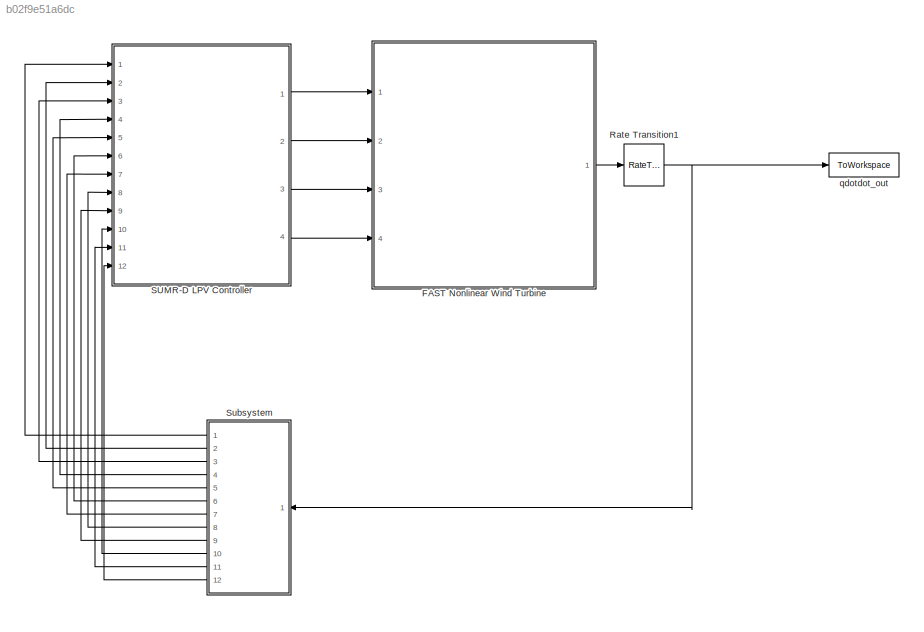
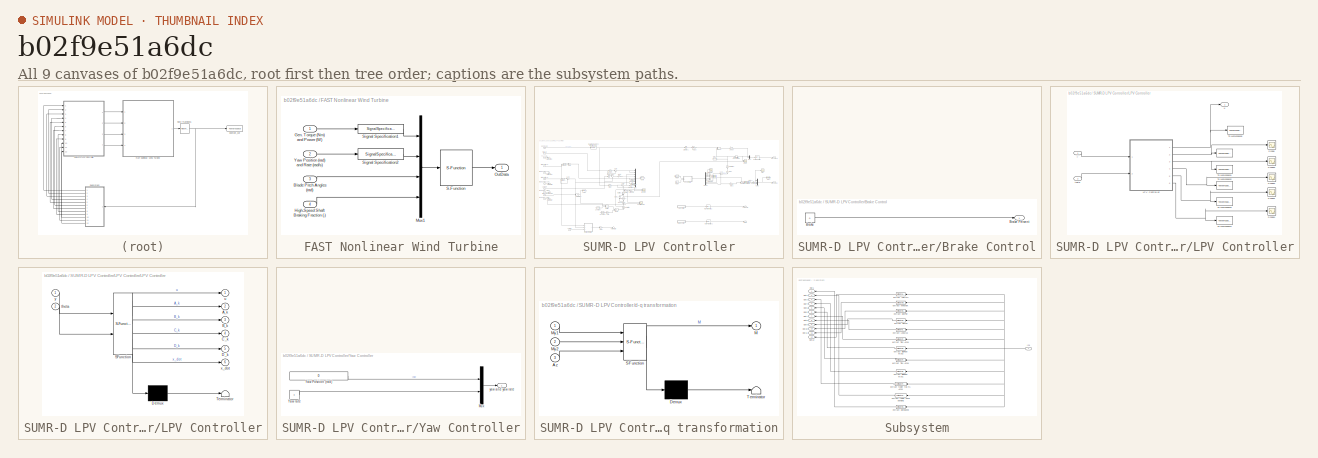
[diagram: thumbnail index - all 9 canvases of the model, root first then tree order]
MODEL slx_b02f9e51a6dc
KIND model
CONFIG AbsTol = auto
CONFIG EnableMultiTasking = on
CONFIG FixedStep = .0125
CONFIG MaxStep = auto
CONFIG MinStep = auto
CONFIG RelTol = 1e-3
CONFIG SampleTimeConstraint = Unconstrained
CONFIG Solver = ode4
CONFIG SolverName = ode4
CONFIG StartTime = 0.0
CONFIG StopTime = TMax
BLOCK [SubSystem] FAST Nonlinear Wind Turbine
  Ports = [4, 1]
  RequestExecContextInheritance = off
BLOCK [Inport] FAST Nonlinear Wind Turbine/Blade Pitch Angles (rad)
  IconDisplay = Port number
  Port = 3
BLOCK [Inport] FAST Nonlinear Wind Turbine/Gen. Torque (Nm) and Power (W)
  IconDisplay = Port number
BLOCK [Inport] FAST Nonlinear Wind Turbine/High-Speed Shaft Braking Fraction (-)
  IconDisplay = Port number
  Port = 4
BLOCK [Mux] FAST Nonlinear Wind Turbine/Mux1
  DisplayOption = bar
  Ports = [4, 1]
BLOCK [Outport] FAST Nonlinear Wind Turbine/OutData
  IconDisplay = Port number
BLOCK [S-Function] FAST Nonlinear Wind Turbine/S-Function
  EnableBusSupport = off
  FunctionName = FAST_SFunc
  Parameters = FAST_InputFileName, TMax, 0
  Ports = [1, 1]
  SFcnIsStateOwnerBlock = off
  SFunctionDeploymentMode = off
BLOCK [SignalSpecification] FAST Nonlinear Wind Turbine/Signal Specification1
  Dimensions = 2
  OutDataTypeStr = double
  SignalType = real
BLOCK [SignalSpecification] FAST Nonlinear Wind Turbine/Signal Specification2
  Dimensions = 2
  OutDataTypeStr = double
  SignalType = real
BLOCK [Inport] FAST Nonlinear Wind Turbine/Yaw Position (rad) and Rate (rad//s)
  IconDisplay = Port number
  Port = 2
BLOCK [RateTransition] Rate Transition1
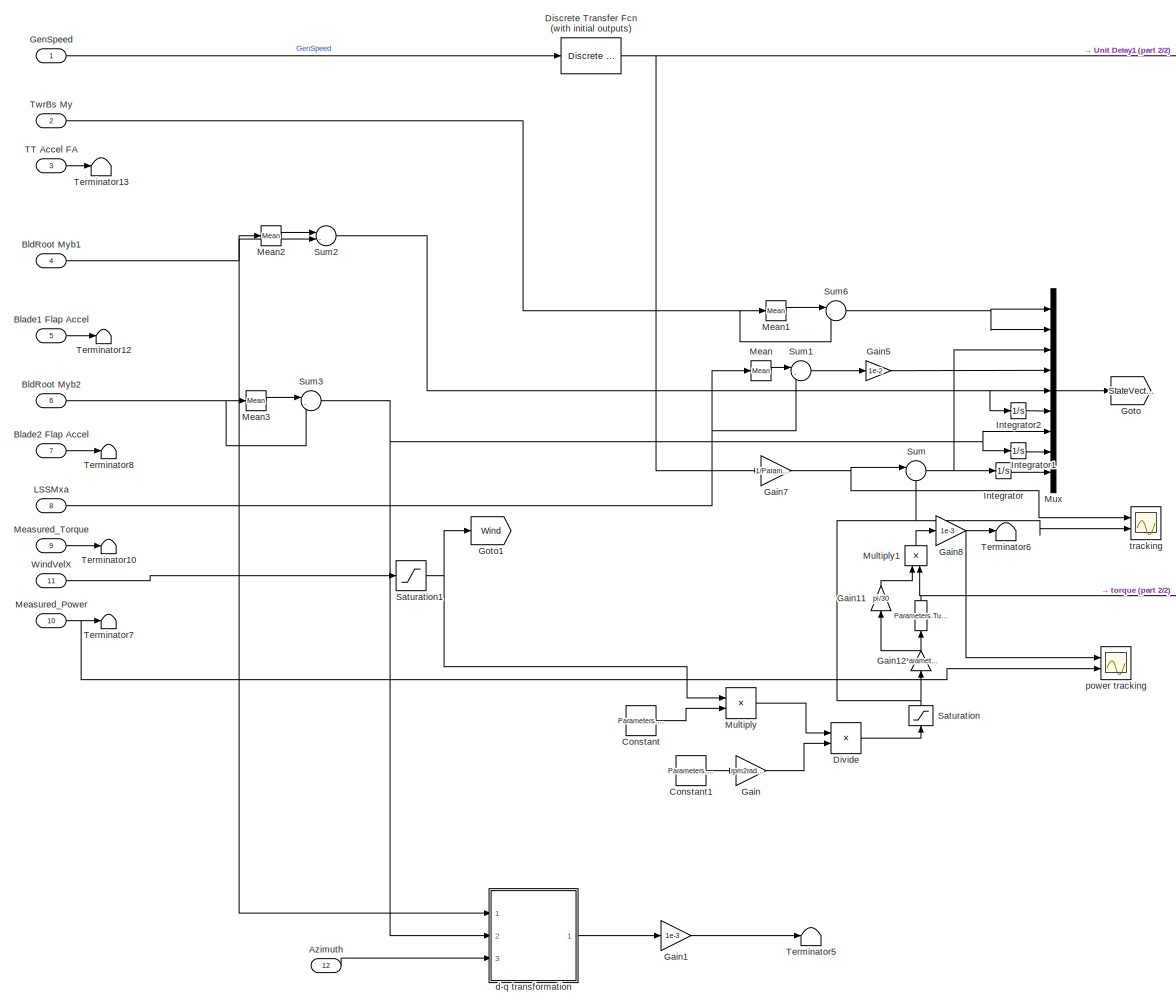
[diagram: SUMR-D LPV Controller - part 1/2, left side, full height]
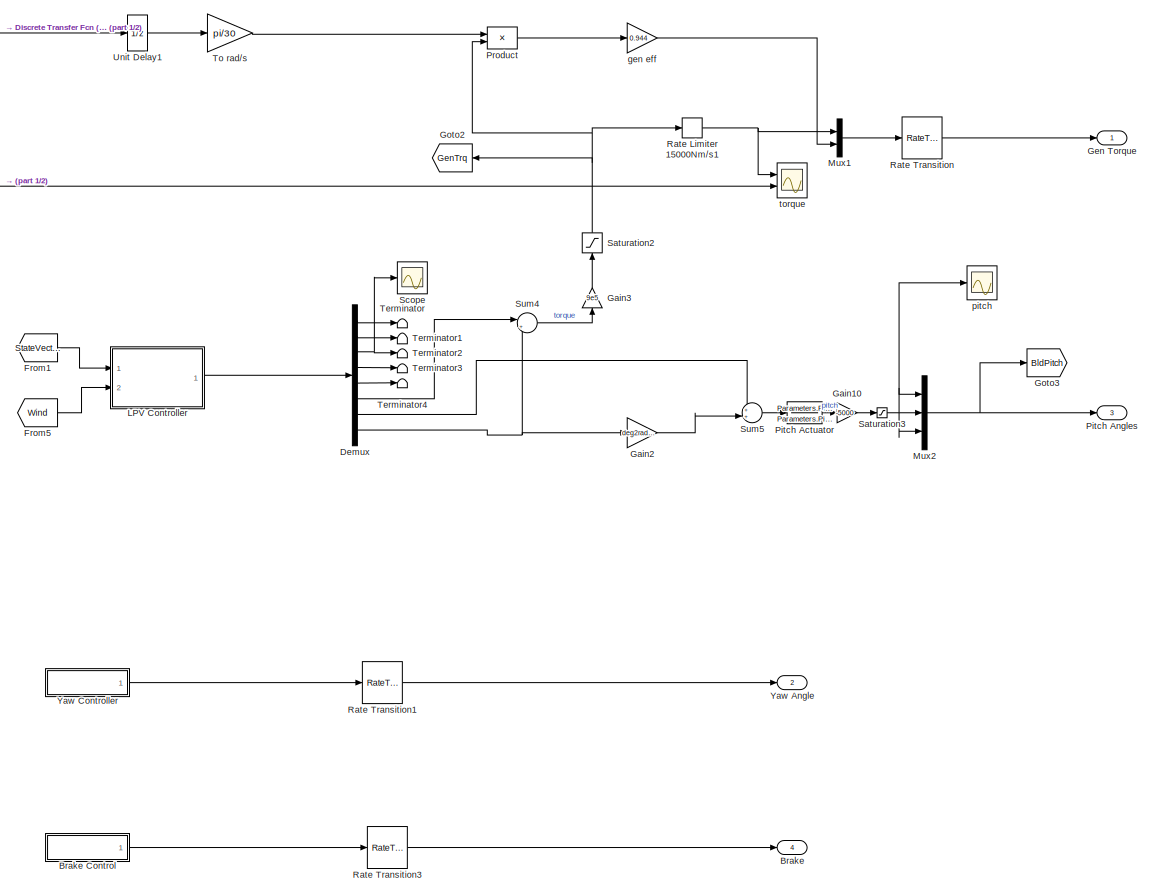
[diagram: SUMR-D LPV Controller - part 2/2, right side, full height]
BLOCK [SubSystem] SUMR-D LPV Controller
  Ports = [12, 4]
  RequestExecContextInheritance = off
BLOCK [Fcn] SUMR-D LPV Controller/ 
  Expr = Parameters.Turbine.kopt*(u)^2
BLOCK [Inport] SUMR-D LPV Controller/Azimuth
  IconDisplay = Port number
  Port = 12
BLOCK [Inport] SUMR-D LPV Controller/Blade1 Flap Accel
  IconDisplay = Port number
  Port = 5
BLOCK [Inport] SUMR-D LPV Controller/Blade2 Flap Accel
  IconDisplay = Port number
  Port = 7
BLOCK [Inport] SUMR-D LPV Controller/BldRoot Myb1
  IconDisplay = Port number
  Port = 4
BLOCK [Inport] SUMR-D LPV Controller/BldRoot Myb2
  IconDisplay = Port number
  Port = 6
BLOCK [Outport] SUMR-D LPV Controller/Brake
  IconDisplay = Port number
  Port = 4
BLOCK [SubSystem] SUMR-D LPV Controller/Brake Control
  Ports = [0, 1]
  RequestExecContextInheritance = off
BLOCK [Constant] SUMR-D LPV Controller/Brake Control/Brake
  SampleTime = -1
  Value = 0
BLOCK [Outport] SUMR-D LPV Controller/Brake Control/Brake Percent
  IconDisplay = Port number
BLOCK [Constant] SUMR-D LPV Controller/Constant
  SampleTime = Simulation.DT
  Value = Parameters.Turbine.la_max
BLOCK [Constant] SUMR-D LPV Controller/Constant1
  Value = Parameters.Turbine.R
BLOCK [Demux] SUMR-D LPV Controller/Demux
  DisplayOption = bar
  Outputs = 8
  Ports = [1, 8]
BLOCK [Reference] SUMR-D LPV Controller/Discrete Transfer Fcn (with initial outputs)  REF=simulink_extras/Additional
Discrete/Discrete
Transfer Fcn
(with initial outputs)
  Ports = [1, 1]
  SourceBlock = simulink_extras/Additional\nDiscrete/Discrete\nTransfer Fcn\n(with initial outputs)
  SourceProductBaseCode = SL
  SourceProductName = Simulink
  SourceType = Discrete Transfer Function with Initial Outputs
BLOCK [Product] SUMR-D LPV Controller/Divide
  InputSameDT = off
  Inputs = */
  OutDataTypeStr = Inherit: Inherit via internal rule
  Ports = [2, 1]
  RndMeth = Floor
  SaturateOnIntegerOverflow = off
BLOCK [From] SUMR-D LPV Controller/From1
  GotoTag = StateVector
BLOCK [From] SUMR-D LPV Controller/From5
  GotoTag = Wind
BLOCK [Gain] SUMR-D LPV Controller/Gain
  Gain = rpm2radps(1)
  OutDataTypeStr = Inherit: Inherit via internal rule
  ParamDataTypeStr = Inherit: Inherit via internal rule
  SaturateOnIntegerOverflow = off
BLOCK [Gain] SUMR-D LPV Controller/Gain1
  Gain = 1e-3
  OutDataTypeStr = Inherit: Inherit via internal rule
  ParamDataTypeStr = Inherit: Inherit via internal rule
  SaturateOnIntegerOverflow = off
BLOCK [Gain] SUMR-D LPV Controller/Gain10
  Gain = -5000
  OutDataTypeStr = Inherit: Inherit via internal rule
  ParamDataTypeStr = Inherit: Inherit via internal rule
  SaturateOnIntegerOverflow = off
BLOCK [Gain] SUMR-D LPV Controller/Gain11
  Gain = pi/30
  OutDataTypeStr = Inherit: Inherit via internal rule
  ParamDataTypeStr = Inherit: Inherit via internal rule
  SaturateOnIntegerOverflow = off
BLOCK [Gain] SUMR-D LPV Controller/Gain12
  Gain = Parameters.Turbine.G
  OutDataTypeStr = Inherit: Inherit via internal rule
  ParamDataTypeStr = Inherit: Inherit via internal rule
  SaturateOnIntegerOverflow = off
BLOCK [Gain] SUMR-D LPV Controller/Gain2
  Gain = deg2rad(1)
  OutDataTypeStr = Inherit: Inherit via internal rule
  ParamDataTypeStr = Inherit: Inherit via internal rule
  SaturateOnIntegerOverflow = off
BLOCK [Gain] SUMR-D LPV Controller/Gain3
  Gain = 9e5
  OutDataTypeStr = Inherit: Inherit via internal rule
  ParamDataTypeStr = Inherit: Inherit via internal rule
  SaturateOnIntegerOverflow = off
BLOCK [Gain] SUMR-D LPV Controller/Gain5
  Gain = 1e-2
  OutDataTypeStr = Inherit: Inherit via internal rule
  ParamDataTypeStr = Inherit: Inherit via internal rule
  SaturateOnIntegerOverflow = off
BLOCK [Gain] SUMR-D LPV Controller/Gain7
  Gain = 1/Parameters.Turbine.G
  OutDataTypeStr = Inherit: Inherit via internal rule
  ParamDataTypeStr = Inherit: Inherit via internal rule
  SaturateOnIntegerOverflow = off
BLOCK [Gain] SUMR-D LPV Controller/Gain8
  Gain = 1e-3
  OutDataTypeStr = Inherit: Inherit via internal rule
  ParamDataTypeStr = Inherit: Inherit via internal rule
  SaturateOnIntegerOverflow = off
BLOCK [Outport] SUMR-D LPV Controller/Gen Torque
  IconDisplay = Port number
BLOCK [Inport] SUMR-D LPV Controller/GenSpeed
  IconDisplay = Port number
BLOCK [Goto] SUMR-D LPV Controller/Goto
  GotoTag = StateVector
BLOCK [Goto] SUMR-D LPV Controller/Goto1
  GotoTag = Wind
BLOCK [Goto] SUMR-D LPV Controller/Goto2
  GotoTag = GenTrq
BLOCK [Goto] SUMR-D LPV Controller/Goto3
  GotoTag = BldPitch
BLOCK [Integrator] SUMR-D LPV Controller/Integrator
  Ports = [1, 1]
BLOCK [Integrator] SUMR-D LPV Controller/Integrator1
  Ports = [1, 1]
BLOCK [Integrator] SUMR-D LPV Controller/Integrator2
  Ports = [1, 1]
BLOCK [SubSystem] SUMR-D LPV Controller/LPV Controller
  MinAlgLoopOccurrences = on
  Ports = [2, 1]
  RequestExecContextInheritance = off
  TreatAsAtomicUnit = on
  TreatAsGroupedWhenPropagatingVariantConditions = off
BLOCK [ToWorkspace] SUMR-D LPV Controller/LPV Controller/ 
  Decimation = 3
  FixptAsFi = on
  MaxDataPoints = inf
  Ports = [1]
  SampleTime = -1
  Save2DSignal = 3-D array (concatenate along third dimension)
  SaveFormat = Structure With Time
  VariableName = A_k
BLOCK [SubSystem] SUMR-D LPV Controller/LPV Controller/LPV Controller
  ErrorFcn = Stateflow.Translate.translate
  MinAlgLoopOccurrences = on
  PermitHierarchicalResolution = ExplicitOnly
  Ports = [2, 6]
  RequestExecContextInheritance = off
  SFBlockType = MATLAB Function
  SystemSampleTime = Simulation.DT
  TreatAsAtomicUnit = on
  TreatAsGroupedWhenPropagatingVariantConditions = off
BLOCK [Demux] SUMR-D LPV Controller/LPV Controller/LPV Controller/ Demux 
  Outputs = 1
  Ports = [1, 1]
BLOCK [S-Function] SUMR-D LPV Controller/LPV Controller/LPV Controller/ SFunction 
  EnableBusSupport = on
  FunctionName = sf_sfun
  PortCounts = [2 7]
  Ports = [2, 7]
  SFcnIsStateOwnerBlock = off
  SFunctionDeploymentMode = off
  Tag = Stateflow S-Function LPV_PitchControl_TwrFA_CP_Demonstrator_Integrator_TSR 1
BLOCK [Terminator] SUMR-D LPV Controller/LPV Controller/LPV Controller/ Terminator 
BLOCK [Outport] SUMR-D LPV Controller/LPV Controller/LPV Controller/A_k
  IconDisplay = Port number
  Port = 2
BLOCK [Outport] SUMR-D LPV Controller/LPV Controller/LPV Controller/B_k
  IconDisplay = Port number
  Port = 3
BLOCK [Outport] SUMR-D LPV Controller/LPV Controller/LPV Controller/C_k
  IconDisplay = Port number
  Port = 4
BLOCK [Outport] SUMR-D LPV Controller/LPV Controller/LPV Controller/D_k
  IconDisplay = Port number
  Port = 5
BLOCK [Inport] SUMR-D LPV Controller/LPV Controller/LPV Controller/theta
  IconDisplay = Port number
  Port = 2
BLOCK [Outport] SUMR-D LPV Controller/LPV Controller/LPV Controller/u
  IconDisplay = Port number
BLOCK [Outport] SUMR-D LPV Controller/LPV Controller/LPV Controller/x_dot
  IconDisplay = Port number
  Port = 6
BLOCK [Inport] SUMR-D LPV Controller/LPV Controller/LPV Controller/y
  IconDisplay = Port number
BLOCK [Scope] SUMR-D LPV Controller/LPV Controller/Scope
  Floating = off
  NumInputPorts = 1
  Ports = [1]
  ScopeSpecificationString = Simulink.scopes.TimeScopeBlockCfg('CurrentConfiguration', extmgr.ConfigurationSet(extmgr.Configuration('Core','General UI',true),extmgr.Configuration('Core','Source UI',true),extmgr.Configuration('Sources','WiredSimulink',true,'DataLoggingVariableName','ScopeData2'),extmgr.Configuration('Visuals','Time Domain',true,'SerializedDisplays',{struct('MinYLimReal','-0.34687','MaxYLimReal','0.29566','YLab...<+3329ch>
BLOCK [Scope] SUMR-D LPV Controller/LPV Controller/Scope1
  Floating = off
  NumInputPorts = 1
  Ports = [1]
  ScopeSpecificationString = Simulink.scopes.TimeScopeBlockCfg('CurrentConfiguration', extmgr.ConfigurationSet(extmgr.Configuration('Core','General UI',true),extmgr.Configuration('Core','Source UI',true),extmgr.Configuration('Sources','WiredSimulink',true,'DataLoggingVariableName','ScopeData3'),extmgr.Configuration('Visuals','Time Domain',true,'SerializedDisplays',{struct('MinYLimReal','-0.33718','MaxYLimReal','0.33271','YLab...<+4605ch>
BLOCK [Scope] SUMR-D LPV Controller/LPV Controller/Scope2
  Floating = off
  NumInputPorts = 1
  Ports = [1]
  ScopeSpecificationString = Simulink.scopes.TimeScopeBlockCfg('CurrentConfiguration', extmgr.ConfigurationSet(extmgr.Configuration('Core','General UI',true),extmgr.Configuration('Core','Source UI',true),extmgr.Configuration('Sources','WiredSimulink',true,'DataLoggingVariableName','ScopeData4'),extmgr.Configuration('Visuals','Time Domain',true,'SerializedDisplays',{struct('MinYLimReal','-0.03894','MaxYLimReal','0.03604','YLab...<+3114ch>
BLOCK [Scope] SUMR-D LPV Controller/LPV Controller/Scope3
  Floating = off
  NumInputPorts = 1
  Ports = [1]
  ScopeSpecificationString = Simulink.scopes.TimeScopeBlockCfg('CurrentConfiguration', extmgr.ConfigurationSet(extmgr.Configuration('Core','General UI',true),extmgr.Configuration('Core','Source UI',true),extmgr.Configuration('Sources','WiredSimulink',true,'DataLoggingVariableName','ScopeData5'),extmgr.Configuration('Visuals','Time Domain',true,'SerializedDisplays',{struct('MinYLimReal','-0.67245','MaxYLimReal','0.67289','YLab...<+3330ch>
BLOCK [Scope] SUMR-D LPV Controller/LPV Controller/Scope4
  Floating = off
  NumInputPorts = 1
  Ports = [1]
  ScopeSpecificationString = Simulink.scopes.TimeScopeBlockCfg('CurrentConfiguration', extmgr.ConfigurationSet(extmgr.Configuration('Core','General UI',true),extmgr.Configuration('Core','Source UI',true),extmgr.Configuration('Sources','WiredSimulink',true,'DataLoggingVariableName','ScopeData4'),extmgr.Configuration('Visuals','Time Domain',true,'SerializedDisplays',{struct('MinYLimReal','-165.30338','MaxYLimReal','153.41933','...<+1633ch>
BLOCK [ToWorkspace] SUMR-D LPV Controller/LPV Controller/To Workspace1
  Decimation = 3
  FixptAsFi = on
  MaxDataPoints = inf
  Ports = [1]
  SampleTime = -1
  Save2DSignal = 3-D array (concatenate along third dimension)
  SaveFormat = Structure With Time
  VariableName = B_k
BLOCK [ToWorkspace] SUMR-D LPV Controller/LPV Controller/To Workspace2
  Decimation = 3
  FixptAsFi = on
  MaxDataPoints = inf
  Ports = [1]
  SampleTime = -1
  Save2DSignal = 3-D array (concatenate along third dimension)
  SaveFormat = Structure With Time
  VariableName = C_k
BLOCK [ToWorkspace] SUMR-D LPV Controller/LPV Controller/To Workspace3
  Decimation = 3
  FixptAsFi = on
  MaxDataPoints = inf
  Ports = [1]
  SampleTime = -1
  Save2DSignal = 3-D array (concatenate along third dimension)
  SaveFormat = Structure With Time
  VariableName = D_k
BLOCK [ToWorkspace] SUMR-D LPV Controller/LPV Controller/To Workspace4
  Decimation = 3
  FixptAsFi = on
  MaxDataPoints = inf
  Ports = [1]
  SampleTime = -1
  Save2DSignal = 3-D array (concatenate along third dimension)
  SaveFormat = Structure With Time
  VariableName = x_k1
BLOCK [ToWorkspace] SUMR-D LPV Controller/LPV Controller/To Workspace5
  Decimation = 3
  FixptAsFi = on
  MaxDataPoints = inf
  Ports = [1]
  SampleTime = -1
  Save2DSignal = 3-D array (concatenate along third dimension)
  SaveFormat = Structure With Time
  VariableName = u
BLOCK [Inport] SUMR-D LPV Controller/LPV Controller/theta
  IconDisplay = Port number
  Port = 2
BLOCK [Outport] SUMR-D LPV Controller/LPV Controller/u
  IconDisplay = Port number
BLOCK [Inport] SUMR-D LPV Controller/LPV Controller/y
  IconDisplay = Port number
BLOCK [Inport] SUMR-D LPV Controller/LSSMxa
  IconDisplay = Port number
  Port = 8
BLOCK [Reference] SUMR-D LPV Controller/Mean  REF=dspstat3/Mean
  Ports = [1, 1]
  SourceBlock = dspstat3/Mean
  SourceProductBaseCode = DS
  SourceProductName = DSP System Toolbox
  SourceType = Mean
  UserDataPersistent = on
BLOCK [Reference] SUMR-D LPV Controller/Mean1  REF=dspstat3/Mean
  Ports = [1, 1]
  SourceBlock = dspstat3/Mean
  SourceProductBaseCode = DS
  SourceProductName = DSP System Toolbox
  SourceType = Mean
  UserDataPersistent = on
BLOCK [Reference] SUMR-D LPV Controller/Mean2  REF=dspstat3/Mean
  Ports = [1, 1]
  SourceBlock = dspstat3/Mean
  SourceProductBaseCode = DS
  SourceProductName = DSP System Toolbox
  SourceType = Mean
  UserDataPersistent = on
BLOCK [Reference] SUMR-D LPV Controller/Mean3  REF=dspstat3/Mean
  Ports = [1, 1]
  SourceBlock = dspstat3/Mean
  SourceProductBaseCode = DS
  SourceProductName = DSP System Toolbox
  SourceType = Mean
  UserDataPersistent = on
BLOCK [Inport] SUMR-D LPV Controller/Measured_Power
  IconDisplay = Port number
  Port = 10
BLOCK [Inport] SUMR-D LPV Controller/Measured_Torque
  IconDisplay = Port number
  Port = 9
BLOCK [Product] SUMR-D LPV Controller/Multiply
  InputSameDT = off
  OutDataTypeStr = Inherit: Inherit via internal rule
  Ports = [2, 1]
  RndMeth = Floor
  SaturateOnIntegerOverflow = off
BLOCK [Product] SUMR-D LPV Controller/Multiply1
  InputSameDT = off
  OutDataTypeStr = Inherit: Inherit via internal rule
  Ports = [2, 1]
  RndMeth = Floor
  SaturateOnIntegerOverflow = off
BLOCK [Mux] SUMR-D LPV Controller/Mux
  DisplayOption = bar
  Inputs = 9
  Ports = [9, 1]
BLOCK [Mux] SUMR-D LPV Controller/Mux1
  DisplayOption = bar
  Inputs = 2
  Ports = [2, 1]
BLOCK [Mux] SUMR-D LPV Controller/Mux2
  DisplayOption = bar
  Inputs = 3
  Ports = [3, 1]
BLOCK [TransferFcn] SUMR-D LPV Controller/Pitch Actuator
  Denominator = Parameters.PitchActuator.TF_den
  Numerator = Parameters.PitchActuator.TF_num
BLOCK [Outport] SUMR-D LPV Controller/Pitch Angles
  IconDisplay = Port number
  Port = 3
BLOCK [Product] SUMR-D LPV Controller/Product
  InputSameDT = off
  OutDataTypeStr = Inherit: Inherit via internal rule
  Ports = [2, 1]
  SaturateOnIntegerOverflow = off
BLOCK [RateLimiter] SUMR-D LPV Controller/Rate Limiter 15000Nm//s1
  FallingSlewLimit = -15000
  RisingSlewLimit = 15000
  SampleTimeMode = inherited
BLOCK [RateTransition] SUMR-D LPV Controller/Rate Transition
  InitialCondition = Parameters.Turbine.IC.Tg
BLOCK [RateTransition] SUMR-D LPV Controller/Rate Transition1
BLOCK [RateTransition] SUMR-D LPV Controller/Rate Transition3
BLOCK [Saturate] SUMR-D LPV Controller/Saturation
  InputPortMap = u0
  LowerLimit = 0
  Ports = [1, 1]
  UpperLimit = Parameters.Turbine.wr_rated
BLOCK [Saturate] SUMR-D LPV Controller/Saturation1
  InputPortMap = u0
  LowerLimit = 0
  Ports = [1, 1]
  UpperLimit = 12
BLOCK [Saturate] SUMR-D LPV Controller/Saturation2
  InputPortMap = u0
  LowerLimit = -Parameters.Turbine.T_rated
  Ports = [1, 1]
  UpperLimit = Parameters.Turbine.T_rated
BLOCK [Saturate] SUMR-D LPV Controller/Saturation3
  InputPortMap = u0
  LowerLimit = deg2rad(Parameters.Turbine.fine_pitch)
  Ports = [1, 1]
  UpperLimit = deg2rad(90)
BLOCK [Scope] SUMR-D LPV Controller/Scope
  Floating = off
  NumInputPorts = 1
  Ports = [1]
  ScopeSpecificationString = Simulink.scopes.TimeScopeBlockCfg('CurrentConfiguration', extmgr.ConfigurationSet(extmgr.Configuration('Core','General UI',true),extmgr.Configuration('Core','Source UI',true),extmgr.Configuration('Sources','WiredSimulink',true,'DataLoggingVariableName','ScopeData1'),extmgr.Configuration('Visuals','Time Domain',true,'SerializedDisplays',{struct('MinYLimReal','-0.60039','MaxYLimReal','0.08008','YLab...<+1406ch>
BLOCK [Sum] SUMR-D LPV Controller/Sum
  IconShape = round
  InputSameDT = off
  Inputs = |-+
  OutDataTypeStr = Inherit: Inherit via internal rule
  Ports = [2, 1]
  SaturateOnIntegerOverflow = off
BLOCK [Sum] SUMR-D LPV Controller/Sum1
  IconShape = round
  InputSameDT = off
  Inputs = |-+
  OutDataTypeStr = Inherit: Inherit via internal rule
  Ports = [2, 1]
  SaturateOnIntegerOverflow = off
BLOCK [Sum] SUMR-D LPV Controller/Sum2
  IconShape = round
  InputSameDT = off
  Inputs = |-+
  OutDataTypeStr = Inherit: Inherit via internal rule
  Ports = [2, 1]
  SaturateOnIntegerOverflow = off
BLOCK [Sum] SUMR-D LPV Controller/Sum3
  IconShape = round
  InputSameDT = off
  Inputs = |-+
  OutDataTypeStr = Inherit: Inherit via internal rule
  Ports = [2, 1]
  SaturateOnIntegerOverflow = off
BLOCK [Sum] SUMR-D LPV Controller/Sum4
  IconShape = round
  InputSameDT = off
  Inputs = |++
  OutDataTypeStr = Inherit: Inherit via internal rule
  Ports = [2, 1]
  SaturateOnIntegerOverflow = off
BLOCK [Sum] SUMR-D LPV Controller/Sum5
  IconShape = round
  InputSameDT = off
  Inputs = ++|
  OutDataTypeStr = Inherit: Inherit via internal rule
  Ports = [2, 1]
  SaturateOnIntegerOverflow = off
BLOCK [Sum] SUMR-D LPV Controller/Sum6
  IconShape = round
  InputSameDT = off
  Inputs = |-+
  OutDataTypeStr = Inherit: Inherit via internal rule
  Ports = [2, 1]
  SaturateOnIntegerOverflow = off
BLOCK [Inport] SUMR-D LPV Controller/TT Accel FA
  IconDisplay = Port number
  Port = 3
BLOCK [Terminator] SUMR-D LPV Controller/Terminator
BLOCK [Terminator] SUMR-D LPV Controller/Terminator1
BLOCK [Terminator] SUMR-D LPV Controller/Terminator10
BLOCK [Terminator] SUMR-D LPV Controller/Terminator12
BLOCK [Terminator] SUMR-D LPV Controller/Terminator13
BLOCK [Terminator] SUMR-D LPV Controller/Terminator2
BLOCK [Terminator] SUMR-D LPV Controller/Terminator3
BLOCK [Terminator] SUMR-D LPV Controller/Terminator4
BLOCK [Terminator] SUMR-D LPV Controller/Terminator5
BLOCK [Terminator] SUMR-D LPV Controller/Terminator6
BLOCK [Terminator] SUMR-D LPV Controller/Terminator7
BLOCK [Terminator] SUMR-D LPV Controller/Terminator8
BLOCK [Gain] SUMR-D LPV Controller/To rad//s
  Gain = pi/30
  OutDataTypeStr = Inherit: Inherit via internal rule
  ParamDataTypeStr = Inherit: Inherit via internal rule
  SaturateOnIntegerOverflow = off
BLOCK [Inport] SUMR-D LPV Controller/TwrBs My
  IconDisplay = Port number
  Port = 2
BLOCK [UnitDelay] SUMR-D LPV Controller/Unit Delay1
  InitialCondition = Parameters.Turbine.IC.Wg
  SampleTime = Simulation.DT
BLOCK [Inport] SUMR-D LPV Controller/WindVelX
  IconDisplay = Port number
  Port = 11
BLOCK [Outport] SUMR-D LPV Controller/Yaw Angle
  IconDisplay = Port number
  Port = 2
BLOCK [SubSystem] SUMR-D LPV Controller/Yaw Controller
  Ports = [0, 1]
  RequestExecContextInheritance = off
BLOCK [Mux] SUMR-D LPV Controller/Yaw Controller/Mux
  DisplayOption = bar
  Inputs = 2
  Ports = [2, 1]
BLOCK [Constant] SUMR-D LPV Controller/Yaw Controller/Yaw Position (rad)
  SampleTime = -1
  Value = 0
BLOCK [Constant] SUMR-D LPV Controller/Yaw Controller/Yaw rate
  SampleTime = -1
  Value = 0
BLOCK [Outport] SUMR-D LPV Controller/Yaw Controller/yaw and yaw rate
  IconDisplay = Port number
BLOCK [SubSystem] SUMR-D LPV Controller/d-q transformation
  ErrorFcn = Stateflow.Translate.translate
  PermitHierarchicalResolution = ExplicitOnly
  Ports = [3, 1]
  RequestExecContextInheritance = off
  SFBlockType = MATLAB Function
  TreatAsAtomicUnit = on
BLOCK [Demux] SUMR-D LPV Controller/d-q transformation/ Demux 
  Outputs = 1
  Ports = [1, 1]
BLOCK [S-Function] SUMR-D LPV Controller/d-q transformation/ SFunction 
  EnableBusSupport = on
  FunctionName = sf_sfun
  PortCounts = [3 2]
  Ports = [3, 2]
  SFcnIsStateOwnerBlock = off
  SFunctionDeploymentMode = off
  Tag = Stateflow S-Function LPV_PitchControl_TwrFA_CP_Demonstrator_Integrator_TSR 5
BLOCK [Terminator] SUMR-D LPV Controller/d-q transformation/ Terminator 
BLOCK [Inport] SUMR-D LPV Controller/d-q transformation/Az
  IconDisplay = Port number
  Port = 3
BLOCK [Outport] SUMR-D LPV Controller/d-q transformation/M
  IconDisplay = Port number
BLOCK [Inport] SUMR-D LPV Controller/d-q transformation/My1
  IconDisplay = Port number
BLOCK [Inport] SUMR-D LPV Controller/d-q transformation/My2
  IconDisplay = Port number
  Port = 2
BLOCK [Gain] SUMR-D LPV Controller/gen eff
  Gain = 0.944
  OutDataTypeStr = Inherit: Inherit via internal rule
  ParamDataTypeStr = Inherit: Inherit via internal rule
  SaturateOnIntegerOverflow = off
BLOCK [Scope] SUMR-D LPV Controller/pitch
  Floating = off
  NumInputPorts = 1
  Ports = [1]
  ScopeSpecificationString = Simulink.scopes.TimeScopeBlockCfg('CurrentConfiguration', extmgr.ConfigurationSet(extmgr.Configuration('Core','General UI',true),extmgr.Configuration('Core','Source UI',true),extmgr.Configuration('Sources','WiredSimulink',true,'DataLoggingVariableName','ScopeData1'),extmgr.Configuration('Visuals','Time Domain',true,'SerializedDisplays',{struct('MinYLimReal','-0.13346','MaxYLimReal','0.32846','YLab...<+1409ch>
BLOCK [Scope] SUMR-D LPV Controller/power tracking
  Floating = off
  NumInputPorts = 2
  Ports = [2]
  ScopeSpecificationString = Simulink.scopes.TimeScopeBlockCfg('CurrentConfiguration', extmgr.ConfigurationSet(extmgr.Configuration('Core','General UI',true),extmgr.Configuration('Core','Source UI',true),extmgr.Configuration('Sources','WiredSimulink',true,'DataLoggingVariableName','ScopeData1'),extmgr.Configuration('Visuals','Time Domain',true,'SerializedDisplays',{struct('MinYLimReal','-339.44423','MaxYLimReal','322.59697','...<+1451ch>
BLOCK [Scope] SUMR-D LPV Controller/torque
  Floating = off
  NumInputPorts = 2
  Ports = [2]
  ScopeSpecificationString = Simulink.scopes.TimeScopeBlockCfg('CurrentConfiguration', extmgr.ConfigurationSet(extmgr.Configuration('Core','General UI',true),extmgr.Configuration('Core','Source UI',true),extmgr.Configuration('Sources','WiredSimulink',true,'DataLoggingVariableName','ScopeData2'),extmgr.Configuration('Visuals','Time Domain',true,'SerializedDisplays',{struct('MinYLimReal','-718.75','MaxYLimReal','718.75','YLabel...<+1419ch>
BLOCK [Scope] SUMR-D LPV Controller/tracking
  Floating = off
  NumInputPorts = 2
  Ports = [2]
  ScopeSpecificationString = Simulink.scopes.TimeScopeBlockCfg('CurrentConfiguration', extmgr.ConfigurationSet(extmgr.Configuration('Core','General UI',true),extmgr.Configuration('Core','Source UI',true),extmgr.Configuration('Sources','WiredSimulink',true,'DataLoggingVariableName','ScopeData1'),extmgr.Configuration('Visuals','Time Domain',true,'SerializedDisplays',{struct('MinYLimReal','13.94312','MaxYLimReal','28.98969','YLa...<+1439ch>
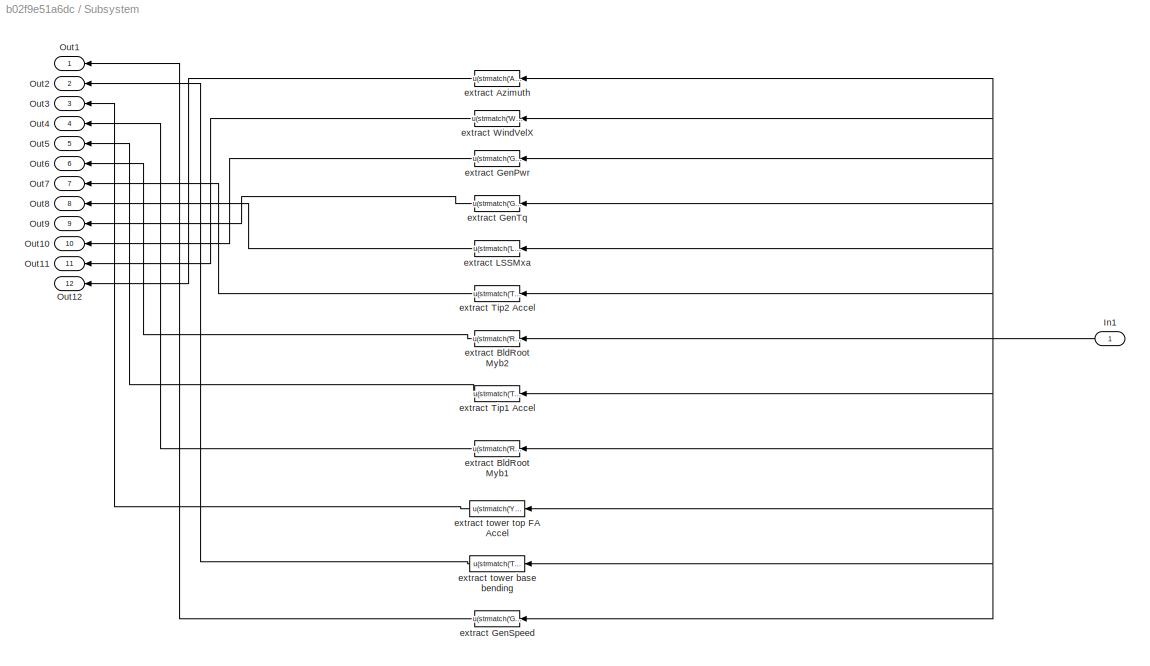
BLOCK [SubSystem] Subsystem
  Ports = [1, 12]
  RequestExecContextInheritance = off
BLOCK [Inport] Subsystem/In1
  IconDisplay = Port number
BLOCK [Outport] Subsystem/Out1
  IconDisplay = Port number
BLOCK [Outport] Subsystem/Out10
  IconDisplay = Port number
  Port = 10
BLOCK [Outport] Subsystem/Out11
  IconDisplay = Port number
  Port = 11
BLOCK [Outport] Subsystem/Out12
  IconDisplay = Port number
  Port = 12
BLOCK [Outport] Subsystem/Out2
  IconDisplay = Port number
  Port = 2
BLOCK [Outport] Subsystem/Out3
  IconDisplay = Port number
  Port = 3
BLOCK [Outport] Subsystem/Out4
  IconDisplay = Port number
  Port = 4
BLOCK [Outport] Subsystem/Out5
  IconDisplay = Port number
  Port = 5
BLOCK [Outport] Subsystem/Out6
  IconDisplay = Port number
  Port = 6
BLOCK [Outport] Subsystem/Out7
  IconDisplay = Port number
  Port = 7
BLOCK [Outport] Subsystem/Out8
  IconDisplay = Port number
  Port = 8
BLOCK [Outport] Subsystem/Out9
  IconDisplay = Port number
  Port = 9
BLOCK [Fcn] Subsystem/extract Azimuth
  Expr = u(strmatch('Azimuth',OutList))
BLOCK [Fcn] Subsystem/extract BldRoot Myb1
  Expr = u(strmatch('RootMyb1',OutList))
BLOCK [Fcn] Subsystem/extract BldRoot Myb2
  Expr = u(strmatch('RootMyb2',OutList))
BLOCK [Fcn] Subsystem/extract GenPwr
  Expr = u(strmatch('GenPwr',OutList))
BLOCK [Fcn] Subsystem/extract GenSpeed
  Expr = u(strmatch('GenSpeed',OutList))
BLOCK [Fcn] Subsystem/extract GenTq
  Expr = u(strmatch('GenTq',OutList))
BLOCK [Fcn] Subsystem/extract LSSMxa
  Expr = u(strmatch('LSShftMxa',OutList))
BLOCK [Fcn] Subsystem/extract Tip1 Accel
  Expr = u(strmatch('TipALxb1',OutList))
BLOCK [Fcn] Subsystem/extract Tip2 Accel
  Expr = u(strmatch('TipALxb1',OutList))
BLOCK [Fcn] Subsystem/extract WindVelX
  Expr = u(strmatch('Wind1VelX',OutList))
BLOCK [Fcn] Subsystem/extract tower base bending
  Expr = u(strmatch('TwrBsMyt',OutList))
BLOCK [Fcn] Subsystem/extract tower top FA Accel
  Expr = u(strmatch('YawBrRAyp',OutList))
BLOCK [ToWorkspace] qdotdot_out
  MaxDataPoints = inf
  Ports = [1]
  SampleTime = -1
  SaveFormat = Structure With Time
  VariableName = OutData
LINE FAST Nonlinear Wind Turbine/Blade Pitch Angles (rad):1 -> FAST Nonlinear Wind Turbine/Mux1:3
LINE FAST Nonlinear Wind Turbine/Gen. Torque (Nm) and Power (W):1 -> FAST Nonlinear Wind Turbine/Signal Specification1:1
LINE FAST Nonlinear Wind Turbine/High-Speed Shaft Braking Fraction (-):1 -> FAST Nonlinear Wind Turbine/Mux1:4
LINE FAST Nonlinear Wind Turbine/Mux1:1 -> FAST Nonlinear Wind Turbine/S-Function:1
LINE FAST Nonlinear Wind Turbine/S-Function:1 -> FAST Nonlinear Wind Turbine/OutData:1
LINE FAST Nonlinear Wind Turbine/Signal Specification1:1 -> FAST Nonlinear Wind Turbine/Mux1:1
LINE FAST Nonlinear Wind Turbine/Signal Specification2:1 -> FAST Nonlinear Wind Turbine/Mux1:2
LINE FAST Nonlinear Wind Turbine/Yaw Position (rad) and Rate (rad//s):1 -> FAST Nonlinear Wind Turbine/Signal Specification2:1
LINE FAST Nonlinear Wind Turbine:1 -> Rate Transition1:1
NET Rate Transition1:1 -> Subsystem:1, qdotdot_out:1
NET SUMR-D LPV Controller/ :1 -> SUMR-D LPV Controller/Multiply1:2, SUMR-D LPV Controller/torque:2
LINE SUMR-D LPV Controller/Azimuth:1 -> SUMR-D LPV Controller/d-q transformation:3
LINE SUMR-D LPV Controller/Blade1 Flap Accel:1 -> SUMR-D LPV Controller/Terminator12:1
LINE SUMR-D LPV Controller/Blade2 Flap Accel:1 -> SUMR-D LPV Controller/Terminator8:1
NET SUMR-D LPV Controller/BldRoot Myb1:1 -> SUMR-D LPV Controller/Mean2:1, SUMR-D LPV Controller/Sum2:2, SUMR-D LPV Controller/d-q transformation:1
NET SUMR-D LPV Controller/BldRoot Myb2:1 -> SUMR-D LPV Controller/Mean3:1, SUMR-D LPV Controller/Sum3:2
LINE SUMR-D LPV Controller/Brake Control/Brake:1 -> SUMR-D LPV Controller/Brake Control/Brake Percent:1
LINE SUMR-D LPV Controller/Brake Control:1 -> SUMR-D LPV Controller/Rate Transition3:1
LINE SUMR-D LPV Controller/Constant1:1 -> SUMR-D LPV Controller/Gain:1
LINE SUMR-D LPV Controller/Constant:1 -> SUMR-D LPV Controller/Multiply:2
LINE SUMR-D LPV Controller/Demux:1 -> SUMR-D LPV Controller/Terminator:1
LINE SUMR-D LPV Controller/Demux:2 -> SUMR-D LPV Controller/Terminator1:1
NET SUMR-D LPV Controller/Demux:3 -> SUMR-D LPV Controller/Scope:1, SUMR-D LPV Controller/Terminator2:1
LINE SUMR-D LPV Controller/Demux:4 -> SUMR-D LPV Controller/Terminator3:1
LINE SUMR-D LPV Controller/Demux:5 -> SUMR-D LPV Controller/Terminator4:1
LINE SUMR-D LPV Controller/Demux:6 -> SUMR-D LPV Controller/Sum4:1
LINE SUMR-D LPV Controller/Demux:7 -> SUMR-D LPV Controller/Sum5:1
NET SUMR-D LPV Controller/Demux:8 -> SUMR-D LPV Controller/Gain2:1, SUMR-D LPV Controller/Sum4:2
NET SUMR-D LPV Controller/Discrete Transfer Fcn (with initial outputs):1 -> SUMR-D LPV Controller/Gain7:1, SUMR-D LPV Controller/Unit Delay1:1
LINE SUMR-D LPV Controller/Divide:1 -> SUMR-D LPV Controller/Saturation:1
LINE SUMR-D LPV Controller/From1:1 -> SUMR-D LPV Controller/LPV Controller:1
LINE SUMR-D LPV Controller/From5:1 -> SUMR-D LPV Controller/LPV Controller:2
LINE SUMR-D LPV Controller/Gain10:1 -> SUMR-D LPV Controller/Saturation3:1
LINE SUMR-D LPV Controller/Gain11:1 -> SUMR-D LPV Controller/Multiply1:1
NET SUMR-D LPV Controller/Gain12:1 -> SUMR-D LPV Controller/ :1, SUMR-D LPV Controller/Gain11:1
LINE SUMR-D LPV Controller/Gain1:1 -> SUMR-D LPV Controller/Terminator5:1
LINE SUMR-D LPV Controller/Gain2:1 -> SUMR-D LPV Controller/Sum5:2
LINE SUMR-D LPV Controller/Gain3:1 -> SUMR-D LPV Controller/Saturation2:1
LINE SUMR-D LPV Controller/Gain5:1 -> SUMR-D LPV Controller/Mux:4
NET SUMR-D LPV Controller/Gain7:1 -> SUMR-D LPV Controller/Sum:1, SUMR-D LPV Controller/tracking:1
NET SUMR-D LPV Controller/Gain8:1 -> SUMR-D LPV Controller/Terminator6:1, SUMR-D LPV Controller/power tracking:1
LINE SUMR-D LPV Controller/Gain:1 -> SUMR-D LPV Controller/Divide:2
LINE SUMR-D LPV Controller/GenSpeed:1 -> SUMR-D LPV Controller/Discrete Transfer Fcn (with initial outputs):1
LINE SUMR-D LPV Controller/Integrator1:1 -> SUMR-D LPV Controller/Mux:8
LINE SUMR-D LPV Controller/Integrator2:1 -> SUMR-D LPV Controller/Mux:6
LINE SUMR-D LPV Controller/Integrator:1 -> SUMR-D LPV Controller/Mux:9
NET SUMR-D LPV Controller/LPV Controller/LPV Controller:1 -> SUMR-D LPV Controller/LPV Controller/To Workspace5:1, SUMR-D LPV Controller/LPV Controller/u:1
NET SUMR-D LPV Controller/LPV Controller/LPV Controller:2 -> SUMR-D LPV Controller/LPV Controller/ :1, SUMR-D LPV Controller/LPV Controller/Scope:1
NET SUMR-D LPV Controller/LPV Controller/LPV Controller:3 -> SUMR-D LPV Controller/LPV Controller/Scope3:1, SUMR-D LPV Controller/LPV Controller/To Workspace1:1
NET SUMR-D LPV Controller/LPV Controller/LPV Controller:4 -> SUMR-D LPV Controller/LPV Controller/Scope2:1, SUMR-D LPV Controller/LPV Controller/To Workspace2:1
NET SUMR-D LPV Controller/LPV Controller/LPV Controller:5 -> SUMR-D LPV Controller/LPV Controller/Scope1:1, SUMR-D LPV Controller/LPV Controller/To Workspace3:1
NET SUMR-D LPV Controller/LPV Controller/LPV Controller:6 -> SUMR-D LPV Controller/LPV Controller/Scope4:1, SUMR-D LPV Controller/LPV Controller/To Workspace4:1
LINE SUMR-D LPV Controller/LPV Controller/theta:1 -> SUMR-D LPV Controller/LPV Controller/LPV Controller:2
LINE SUMR-D LPV Controller/LPV Controller/y:1 -> SUMR-D LPV Controller/LPV Controller/LPV Controller:1
LINE SUMR-D LPV Controller/LPV Controller:1 -> SUMR-D LPV Controller/Demux:1
NET SUMR-D LPV Controller/LSSMxa:1 -> SUMR-D LPV Controller/Mean:1, SUMR-D LPV Controller/Sum1:2
LINE SUMR-D LPV Controller/Mean1:1 -> SUMR-D LPV Controller/Sum6:1
LINE SUMR-D LPV Controller/Mean2:1 -> SUMR-D LPV Controller/Sum2:1
LINE SUMR-D LPV Controller/Mean3:1 -> SUMR-D LPV Controller/Sum3:1
LINE SUMR-D LPV Controller/Mean:1 -> SUMR-D LPV Controller/Sum1:1
NET SUMR-D LPV Controller/Measured_Power:1 -> SUMR-D LPV Controller/Terminator7:1, SUMR-D LPV Controller/power tracking:2
LINE SUMR-D LPV Controller/Measured_Torque:1 -> SUMR-D LPV Controller/Terminator10:1
LINE SUMR-D LPV Controller/Multiply1:1 -> SUMR-D LPV Controller/Gain8:1
LINE SUMR-D LPV Controller/Multiply:1 -> SUMR-D LPV Controller/Divide:1
LINE SUMR-D LPV Controller/Mux1:1 -> SUMR-D LPV Controller/Rate Transition:1
NET SUMR-D LPV Controller/Mux2:1 -> SUMR-D LPV Controller/Goto3:1, SUMR-D LPV Controller/Pitch Angles:1
LINE SUMR-D LPV Controller/Mux:1 -> SUMR-D LPV Controller/Goto:1
LINE SUMR-D LPV Controller/Pitch Actuator:1 -> SUMR-D LPV Controller/Gain10:1
LINE SUMR-D LPV Controller/Product:1 -> SUMR-D LPV Controller/gen eff:1
NET SUMR-D LPV Controller/Rate Limiter 15000Nm//s1:1 -> SUMR-D LPV Controller/Mux1:1, SUMR-D LPV Controller/torque:1
LINE SUMR-D LPV Controller/Rate Transition1:1 -> SUMR-D LPV Controller/Yaw Angle:1
LINE SUMR-D LPV Controller/Rate Transition3:1 -> SUMR-D LPV Controller/Brake:1
LINE SUMR-D LPV Controller/Rate Transition:1 -> SUMR-D LPV Controller/Gen Torque:1
NET SUMR-D LPV Controller/Saturation1:1 -> SUMR-D LPV Controller/Goto1:1, SUMR-D LPV Controller/Multiply:1
NET SUMR-D LPV Controller/Saturation2:1 -> SUMR-D LPV Controller/Goto2:1, SUMR-D LPV Controller/Product:2, SUMR-D LPV Controller/Rate Limiter 15000Nm//s1:1
NET SUMR-D LPV Controller/Saturation3:1 -> SUMR-D LPV Controller/Mux2:1, SUMR-D LPV Controller/Mux2:2, SUMR-D LPV Controller/Mux2:3, SUMR-D LPV Controller/pitch:1
NET SUMR-D LPV Controller/Saturation:1 -> SUMR-D LPV Controller/Gain12:1, SUMR-D LPV Controller/Sum:2, SUMR-D LPV Controller/tracking:2
LINE SUMR-D LPV Controller/Sum1:1 -> SUMR-D LPV Controller/Gain5:1
NET SUMR-D LPV Controller/Sum2:1 -> SUMR-D LPV Controller/Integrator2:1, SUMR-D LPV Controller/Mux:5
NET SUMR-D LPV Controller/Sum3:1 -> SUMR-D LPV Controller/Integrator1:1, SUMR-D LPV Controller/Mux:7, SUMR-D LPV Controller/d-q transformation:2
LINE SUMR-D LPV Controller/Sum4:1 -> SUMR-D LPV Controller/Gain3:1
LINE SUMR-D LPV Controller/Sum5:1 -> SUMR-D LPV Controller/Pitch Actuator:1
NET SUMR-D LPV Controller/Sum6:1 -> SUMR-D LPV Controller/Mux:1, SUMR-D LPV Controller/Mux:2
NET SUMR-D LPV Controller/Sum:1 -> SUMR-D LPV Controller/Integrator:1, SUMR-D LPV Controller/Mux:3
LINE SUMR-D LPV Controller/TT Accel FA:1 -> SUMR-D LPV Controller/Terminator13:1
LINE SUMR-D LPV Controller/To rad//s:1 -> SUMR-D LPV Controller/Product:1
NET SUMR-D LPV Controller/TwrBs My:1 -> SUMR-D LPV Controller/Mean1:1, SUMR-D LPV Controller/Sum6:2
LINE SUMR-D LPV Controller/Unit Delay1:1 -> SUMR-D LPV Controller/To rad//s:1
LINE SUMR-D LPV Controller/WindVelX:1 -> SUMR-D LPV Controller/Saturation1:1
LINE SUMR-D LPV Controller/Yaw Controller/Mux:1 -> SUMR-D LPV Controller/Yaw Controller/yaw and yaw rate:1
LINE SUMR-D LPV Controller/Yaw Controller/Yaw Position (rad):1 -> SUMR-D LPV Controller/Yaw Controller/Mux:1
LINE SUMR-D LPV Controller/Yaw Controller/Yaw rate:1 -> SUMR-D LPV Controller/Yaw Controller/Mux:2
LINE SUMR-D LPV Controller/Yaw Controller:1 -> SUMR-D LPV Controller/Rate Transition1:1
LINE SUMR-D LPV Controller/d-q transformation:1 -> SUMR-D LPV Controller/Gain1:1
LINE SUMR-D LPV Controller/gen eff:1 -> SUMR-D LPV Controller/Mux1:2
LINE SUMR-D LPV Controller:1 -> FAST Nonlinear Wind Turbine:1
LINE SUMR-D LPV Controller:2 -> FAST Nonlinear Wind Turbine:2
LINE SUMR-D LPV Controller:3 -> FAST Nonlinear Wind Turbine:3
LINE SUMR-D LPV Controller:4 -> FAST Nonlinear Wind Turbine:4
NET Subsystem/In1:1 -> Subsystem/extract Azimuth:1, Subsystem/extract BldRoot Myb1:1, Subsystem/extract BldRoot Myb2:1, Subsystem/extract GenPwr:1, Subsystem/extract GenSpeed:1, Subsystem/extract GenTq:1, Subsystem/extract LSSMxa:1, Subsystem/extract Tip1 Accel:1, Subsystem/extract Tip2 Accel:1, Subsystem/extract WindVelX:1, Subsystem/extract tower base bending:1, Subsystem/extract tower top FA Accel:1
LINE Subsystem/extract Azimuth:1 -> Subsystem/Out12:1
LINE Subsystem/extract BldRoot Myb1:1 -> Subsystem/Out4:1
LINE Subsystem/extract BldRoot Myb2:1 -> Subsystem/Out6:1
LINE Subsystem/extract GenPwr:1 -> Subsystem/Out10:1
LINE Subsystem/extract GenSpeed:1 -> Subsystem/Out1:1
LINE Subsystem/extract GenTq:1 -> Subsystem/Out9:1
LINE Subsystem/extract LSSMxa:1 -> Subsystem/Out8:1
LINE Subsystem/extract Tip1 Accel:1 -> Subsystem/Out5:1
LINE Subsystem/extract Tip2 Accel:1 -> Subsystem/Out7:1
LINE Subsystem/extract WindVelX:1 -> Subsystem/Out11:1
LINE Subsystem/extract tower base bending:1 -> Subsystem/Out2:1
LINE Subsystem/extract tower top FA Accel:1 -> Subsystem/Out3:1
LINE Subsystem:1 -> SUMR-D LPV Controller:1
LINE Subsystem:10 -> SUMR-D LPV Controller:10
LINE Subsystem:11 -> SUMR-D LPV Controller:11
LINE Subsystem:12 -> SUMR-D LPV Controller:12
LINE Subsystem:2 -> SUMR-D LPV Controller:2
LINE Subsystem:3 -> SUMR-D LPV Controller:3
LINE Subsystem:4 -> SUMR-D LPV Controller:4
LINE Subsystem:5 -> SUMR-D LPV Controller:5
LINE Subsystem:6 -> SUMR-D LPV Controller:6
LINE Subsystem:7 -> SUMR-D LPV Controller:7
LINE Subsystem:8 -> SUMR-D LPV Controller:8
LINE Subsystem:9 -> SUMR-D LPV Controller:9
note: NET lines group one-source signal fan-out (src -> all destinations, sorted); 1:1 wires keep LINE
CHART SUMR-D LPV Controller/LPV Controller/LPV Controller states=1 transitions=1
  STATE_LABEL 'eML_blk_kernel()'
  STATE_LABEL "SCRIPT:\nfunction [u,  A_k, B_k, C_k, D_k, x_dot]   = LPVController(y, theta)\n% coder.extrinsic('trapz')\n\npersistent x_kp;\n\nif isempty(x_kp)\n    x_kp = zeros(9,1); \nend\nK_bar = [               255.35106780363859627094799997114*theta^2 - 1017.5031595134479570747624544903*theta + 33196.795076652738982037058478708,                  255.1329795044423175868482687788*theta^2 - 1016.1723886546314146301789...<+3608ch>"
CHART SUMR-D LPV Controller/d-q transformation states=1 transitions=1
  STATE_LABEL 'eML_blk_kernel()'
  STATE_LABEL 'SCRIPT:\nfunction M  = fcn(My1,My2, Az)\n% This block supports the Embedded MATLAB subset.\n% See the help menu for details. \n\n[M] = [1/2, 1/2;-1/2, 1/2]*[My1;My2];\n\nend'
